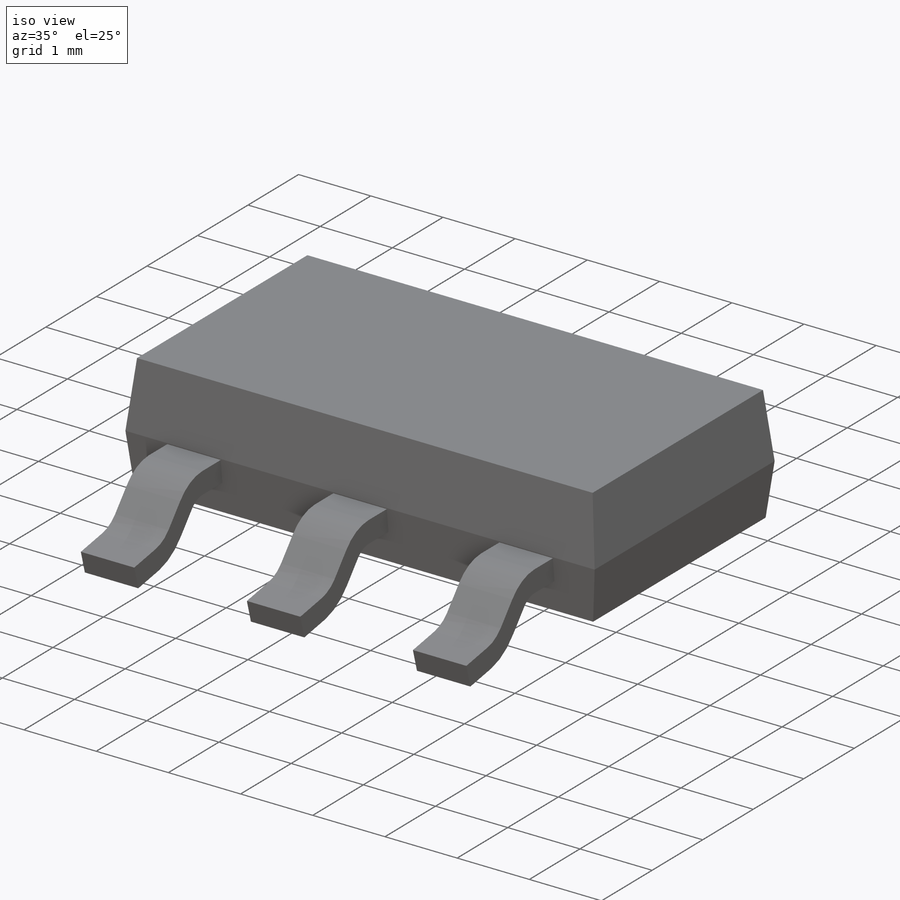
[diagram: iso view]
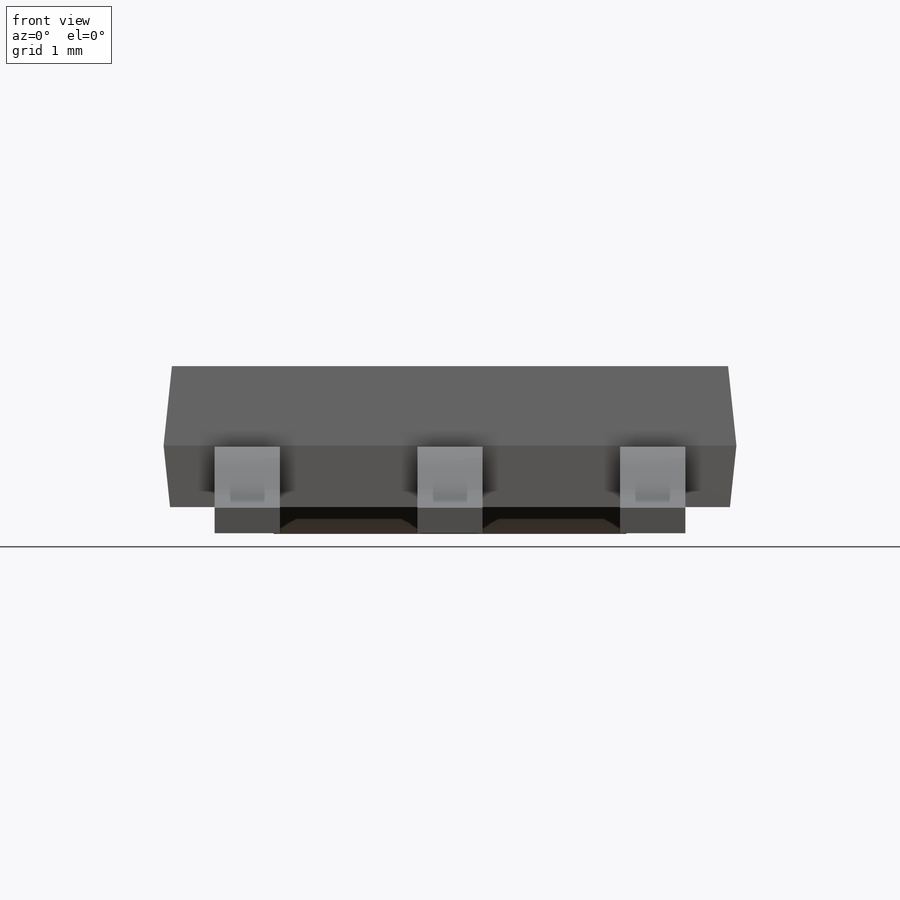
[diagram: front view]
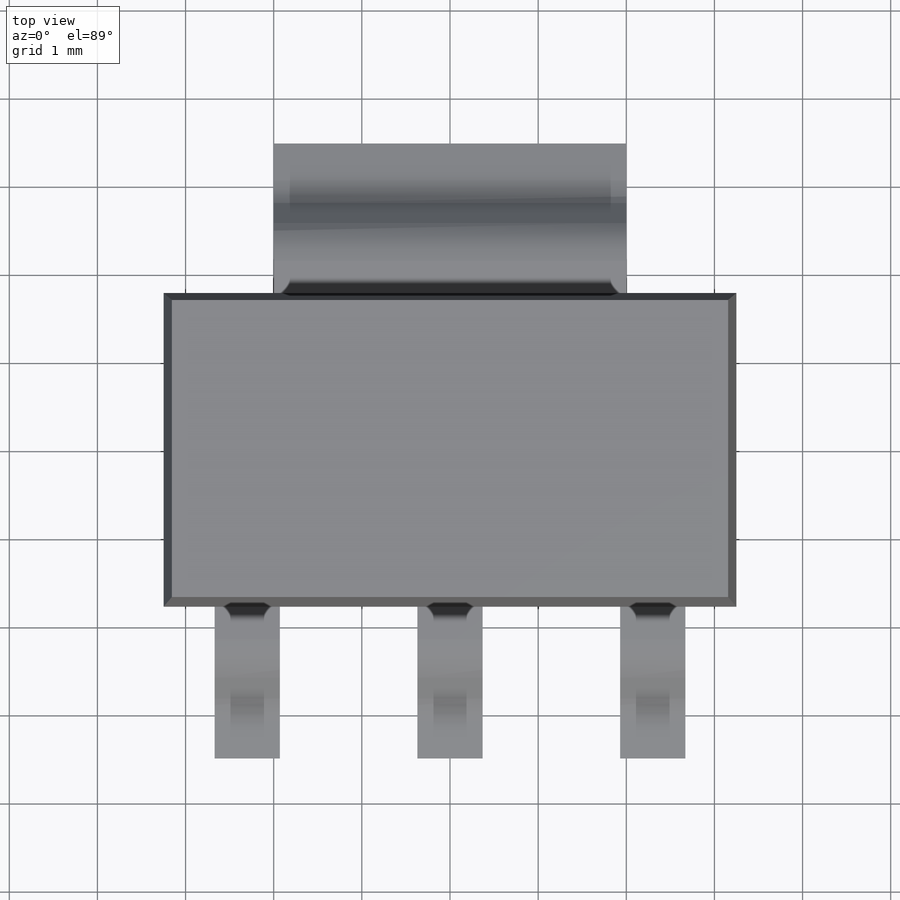
[diagram: top view]
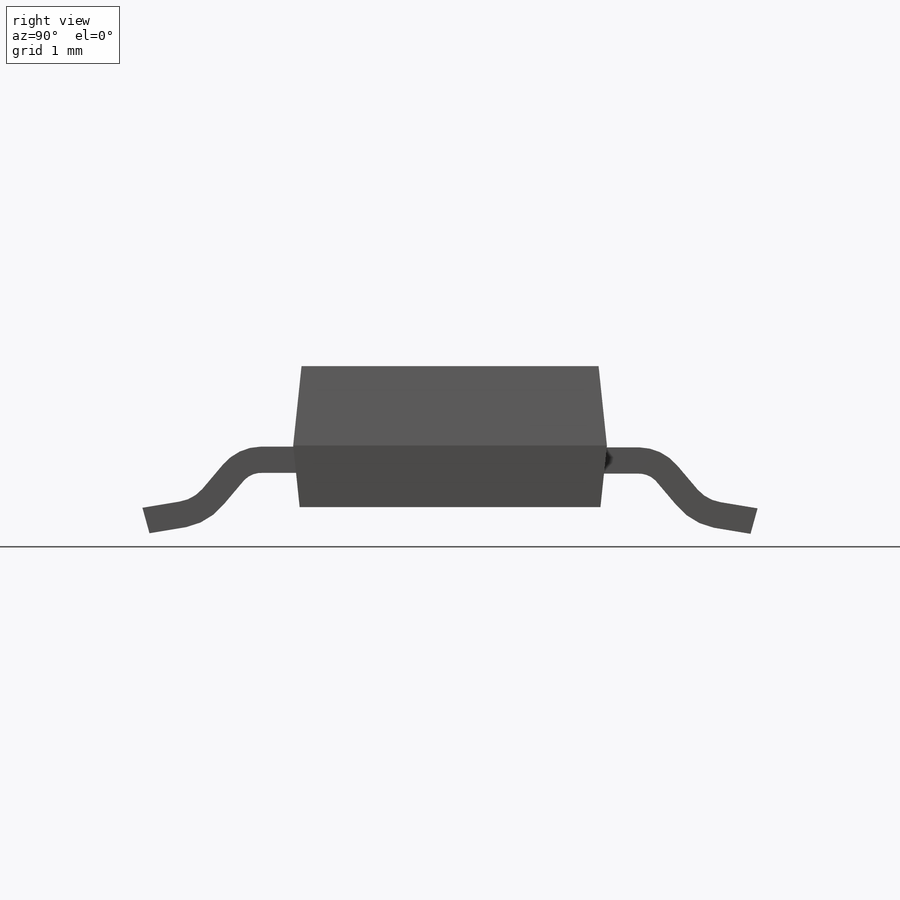
[diagram: right view]
SOLIDWORKS PART (.sldprt)
format: sldprt  version: not decoded by parser v0  size: 197,632 bytes
history: native  units: mm
features: sketch x5, plane x3, sweep x2, material x1, extrude x1, pattern_linear x1 (+9 scaffold rows collapsed)
feature tree (22):
  scaffold x9  (default folders/planes/origin — collapsed)
  material  "Material <not specified>"
  plane  "Plano frontal"
  plane  "Plano superior"
  plane  "Plano direito"
  sketch  "Esboço1"  dims[D1=3.25mm D2=6.5mm D3=1.78mm D4=3.56mm]
  extrude  "Extrusão1"  Depth=0.9mm
  sketch  "Esboço2"  dims[D5=0.5mm D1=0.6mm D2=0.6mm D3=0.5mm D4=0.1mm D6=~0.692022mm]
  sketch  "Esboço3"  dims[D1=0.74mm D2=0.37mm D3=0.3mm]
  sweep  "Varredura1"
  pattern_linear  "Padrão linear1"  Count1=2 Count2=2 Spacing1=2.3mm Spacing2=2.3mm
  sketch  "Esboço4"  dims[D6=0.5mm D1=0.6mm D2=0.5mm D3=0.6mm D4=0.1mm D5=0.59mm]
  sketch  "Esboço5"  dims[D1=0.3mm D2=4.0mm D3=2.0mm]
  sweep  "Varredura2"
decode coverage: 7 of 9 modeling features carry decoded parameters
note: ~ marks probable driven/reference dimensions
note: suppression state not decoded; provenance and decode notes live in map.json
